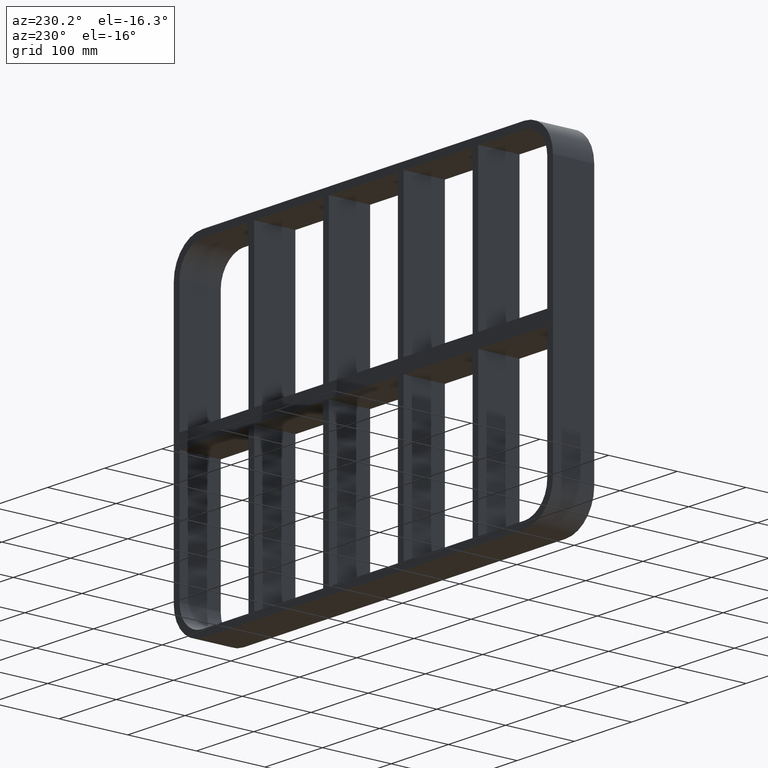
[diagram: clean part render]
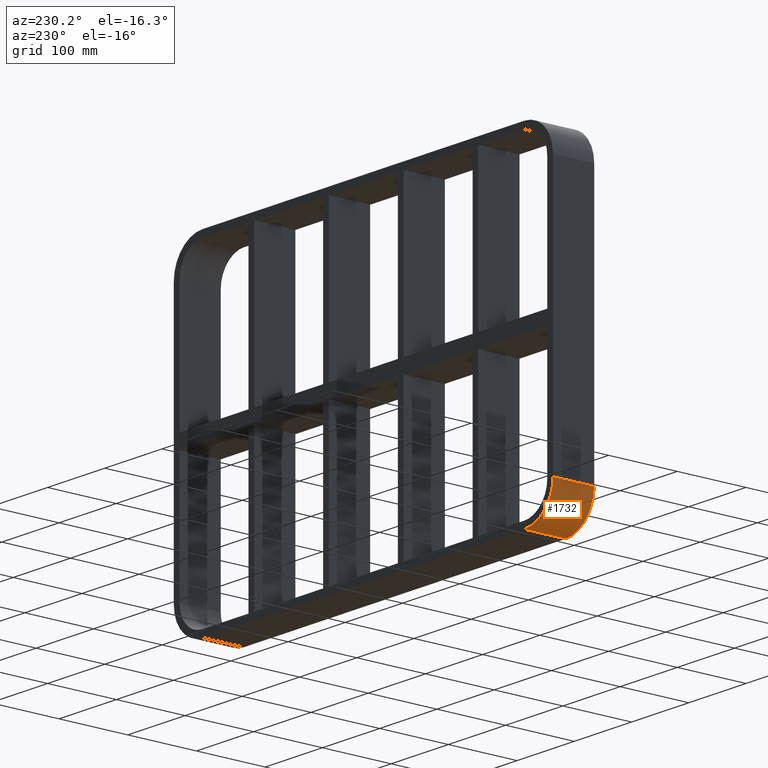
[diagram: same view with one face highlighted and labeled with its STEP entity id]
A machine part, auxiliary view. The second image highlights one B-rep face of the part: STEP entity #1732.
In plain terms, the highlighted cylindrical surface (partial cylindrical patch) has radius 50 mm, axis along (0, 1, 0).
Its self-contained STEP definition (entity closure, byte-faithful):
#704=CARTESIAN_POINT('',(-331.25,-3.0,-188.0));
#705=VERTEX_POINT('',#704);
#712=CARTESIAN_POINT('',(-281.25,-3.0,-238.0));
#713=VERTEX_POINT('',#712);
#714=CARTESIAN_POINT('',(-281.25,-3.0,-188.0));
#715=DIRECTION('',(0.0,1.0,0.0));
#716=DIRECTION('',(-0.707106781186547,0.0,-0.707106781186547));
#717=AXIS2_PLACEMENT_3D('',#714,#715,#716);
#718=CIRCLE('',#717,49.999999999999986);
#719=EDGE_CURVE('',#713,#705,#718,.T.);
#1055=CARTESIAN_POINT('',(-281.25,57.0,-238.0));
#1056=VERTEX_POINT('',#1055);
#1063=CARTESIAN_POINT('',(-331.25,57.0,-188.0));
#1064=VERTEX_POINT('',#1063);
#1065=CARTESIAN_POINT('',(-281.25,57.0,-188.0));
#1066=DIRECTION('',(0.0,-1.0,0.0));
#1067=DIRECTION('',(-0.707106781186547,0.0,-0.707106781186547));
#1068=AXIS2_PLACEMENT_3D('',#1065,#1066,#1067);
#1069=CIRCLE('',#1068,49.999999999999986);
#1070=EDGE_CURVE('',#1064,#1056,#1069,.T.);
#1711=CARTESIAN_POINT('',(-281.25,0.0,-188.0));
#1712=DIRECTION('',(0.0,1.0,0.0));
#1713=DIRECTION('',(-0.707106781186547,0.0,-0.707106781186547));
#1714=AXIS2_PLACEMENT_3D('',#1711,#1712,#1713);
#1715=CYLINDRICAL_SURFACE('',#1714,49.999999999999993);
#1716=ORIENTED_EDGE('',*,*,#1070,.T.);
#1717=CARTESIAN_POINT('',(-281.25,57.0,-238.0));
#1718=DIRECTION('',(0.0,-1.0,0.0));
#1719=VECTOR('',#1718,60.0);
#1720=LINE('',#1717,#1719);
#1721=EDGE_CURVE('',#1056,#713,#1720,.T.);
#1722=ORIENTED_EDGE('',*,*,#1721,.T.);
#1723=ORIENTED_EDGE('',*,*,#719,.T.);
#1724=CARTESIAN_POINT('',(-331.25,-3.0,-188.0));
#1725=DIRECTION('',(0.0,1.0,0.0));
#1726=VECTOR('',#1725,60.0);
#1727=LINE('',#1724,#1726);
#1728=EDGE_CURVE('',#705,#1064,#1727,.T.);
#1729=ORIENTED_EDGE('',*,*,#1728,.T.);
#1730=EDGE_LOOP('',(#1716,#1722,#1723,#1729));
#1731=FACE_OUTER_BOUND('',#1730,.T.);
#1732=ADVANCED_FACE('',(#1731),#1715,.T.);